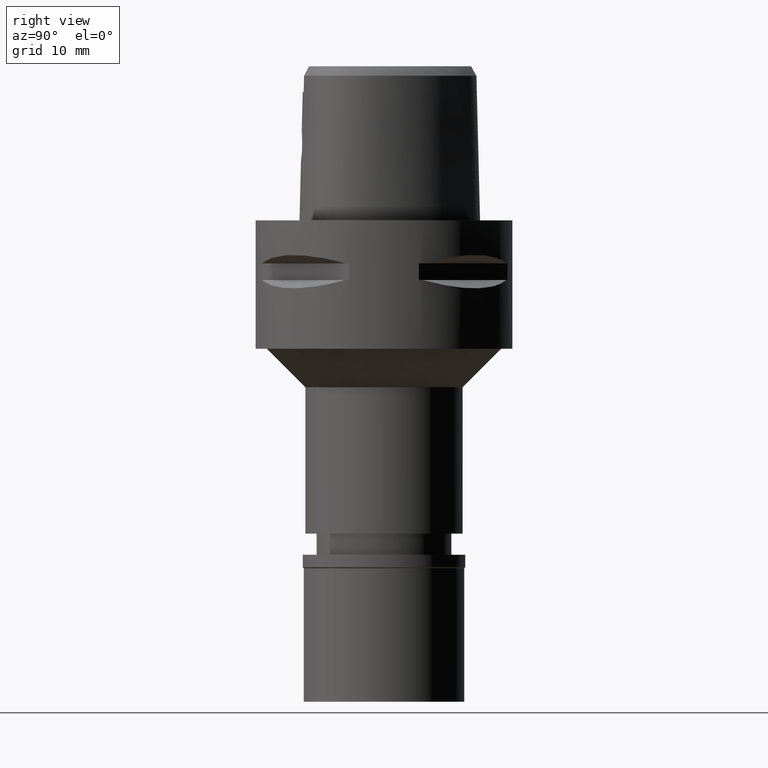
[diagram: clean part render]
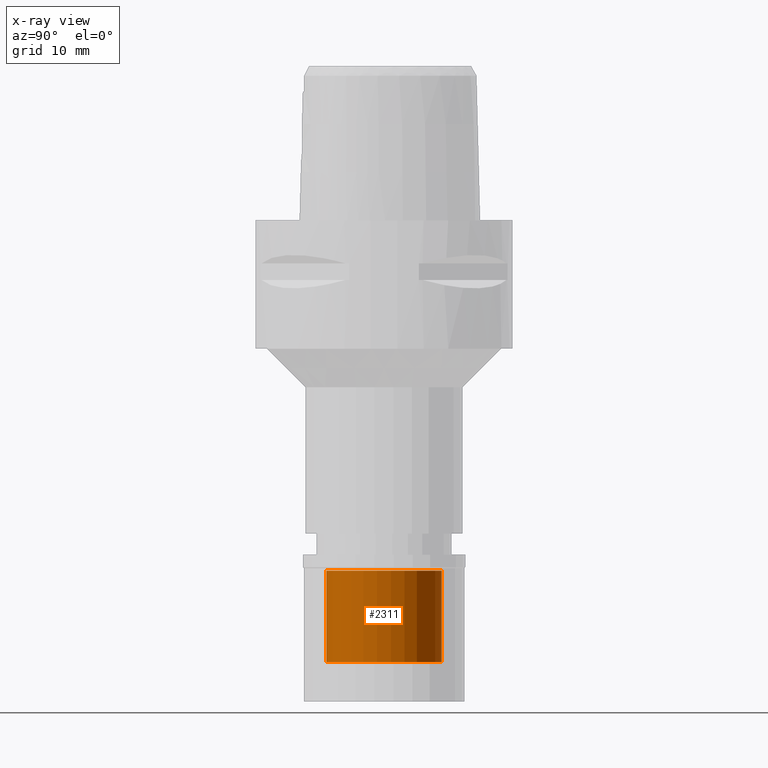
[diagram: x-ray — body ghosted, one internal face saturated and labeled with its STEP entity id]
A machine part, right view, then the same camera in x-ray: the body is ghosted and one INTERNAL B-rep face — a face not visible from any outside direction — is saturated and labeled: STEP entity #2311.
In plain terms, the highlighted cylindrical surface (partial cylindrical patch) has radius 9 mm, axis along (0, 0, -1).
Its self-contained STEP definition (entity closure, byte-faithful):
#216 = AXIS2_PLACEMENT_3D ( 'NONE', #4705, #4325, #2008 ) ;
#291 = AXIS2_PLACEMENT_3D ( 'NONE', #1629, #3872, #2776 ) ;
#299 = VECTOR ( 'NONE', #3861, 1000.000000000000000 ) ;
#547 = ORIENTED_EDGE ( 'NONE', *, *, #1617, .T. ) ;
#652 = CARTESIAN_POINT ( 'NONE',  ( 0.0000000000000000000, -9.000000000000000000, -16.69999999999999929 ) ) ;
#937 = FACE_OUTER_BOUND ( 'NONE', #1697, .T. ) ;
#970 = CARTESIAN_POINT ( 'NONE',  ( 0.0000000000000000000, -9.000000000000000000, -2.500000000000000000 ) ) ;
#973 = DIRECTION ( 'NONE',  ( 0.0000000000000000000, -1.000000000000000000, 0.0000000000000000000 ) ) ;
#1083 = VERTEX_POINT ( 'NONE', #2332 ) ;
#1325 = LINE ( 'NONE', #2815, #299 ) ;
#1617 = EDGE_CURVE ( 'NONE', #3451, #1731, #3897, .T. ) ;
#1629 = CARTESIAN_POINT ( 'NONE',  ( 0.0000000000000000000, 0.0000000000000000000, 0.0000000000000000000 ) ) ;
#1697 = EDGE_LOOP ( 'NONE', ( #4055, #4197, #547, #3879 ) ) ;
#1731 = VERTEX_POINT ( 'NONE', #4054 ) ;
#2008 = DIRECTION ( 'NONE',  ( 0.0000000000000000000, 1.000000000000000000, 0.0000000000000000000 ) ) ;
#2311 = ADVANCED_FACE ( 'NONE', ( #937 ), #3823, .F. ) ;
#2326 = VERTEX_POINT ( 'NONE', #2336 ) ;
#2332 = CARTESIAN_POINT ( 'NONE',  ( 0.0000000000000000000, 9.000000000000000000, -16.69999999999999929 ) ) ;
#2336 = CARTESIAN_POINT ( 'NONE',  ( 0.0000000000000000000, -9.000000000000000000, -16.69999999999999929 ) ) ;
#2377 = DIRECTION ( 'NONE',  ( 0.0000000000000000000, 0.0000000000000000000, 1.000000000000000000 ) ) ;
#2450 = LINE ( 'NONE', #652, #3117 ) ;
#2730 = CIRCLE ( 'NONE', #216, 9.000000000000000000 ) ;
#2776 = DIRECTION ( 'NONE',  ( 0.0000000000000000000, -1.000000000000000000, 0.0000000000000000000 ) ) ;
#2815 = CARTESIAN_POINT ( 'NONE',  ( 0.0000000000000000000, 9.000000000000000000, -16.69999999999999929 ) ) ;
#2842 = CARTESIAN_POINT ( 'NONE',  ( 0.0000000000000000000, 0.0000000000000000000, -2.500000000000000000 ) ) ;
#2942 = EDGE_CURVE ( 'NONE', #1083, #2326, #2730, .T. ) ;
#3022 = EDGE_CURVE ( 'NONE', #2326, #3451, #2450, .T. ) ;
#3117 = VECTOR ( 'NONE', #3205, 1000.000000000000000 ) ;
#3205 = DIRECTION ( 'NONE',  ( 0.0000000000000000000, 0.0000000000000000000, 1.000000000000000000 ) ) ;
#3451 = VERTEX_POINT ( 'NONE', #970 ) ;
#3536 = EDGE_CURVE ( 'NONE', #1083, #1731, #1325, .T. ) ;
#3823 = CYLINDRICAL_SURFACE ( 'NONE', #291, 9.000000000000000000 ) ;
#3861 = DIRECTION ( 'NONE',  ( 0.0000000000000000000, 0.0000000000000000000, 1.000000000000000000 ) ) ;
#3872 = DIRECTION ( 'NONE',  ( 0.0000000000000000000, 0.0000000000000000000, -1.000000000000000000 ) ) ;
#3879 = ORIENTED_EDGE ( 'NONE', *, *, #3536, .F. ) ;
#3897 = CIRCLE ( 'NONE', #4053, 9.000000000000000000 ) ;
#4053 = AXIS2_PLACEMENT_3D ( 'NONE', #2842, #2377, #973 ) ;
#4054 = CARTESIAN_POINT ( 'NONE',  ( 0.0000000000000000000, 9.000000000000000000, -2.500000000000000000 ) ) ;
#4055 = ORIENTED_EDGE ( 'NONE', *, *, #2942, .T. ) ;
#4197 = ORIENTED_EDGE ( 'NONE', *, *, #3022, .T. ) ;
#4325 = DIRECTION ( 'NONE',  ( 0.0000000000000000000, 0.0000000000000000000, -1.000000000000000000 ) ) ;
#4705 = CARTESIAN_POINT ( 'NONE',  ( 0.0000000000000000000, 0.0000000000000000000, -16.69999999999999929 ) ) ;